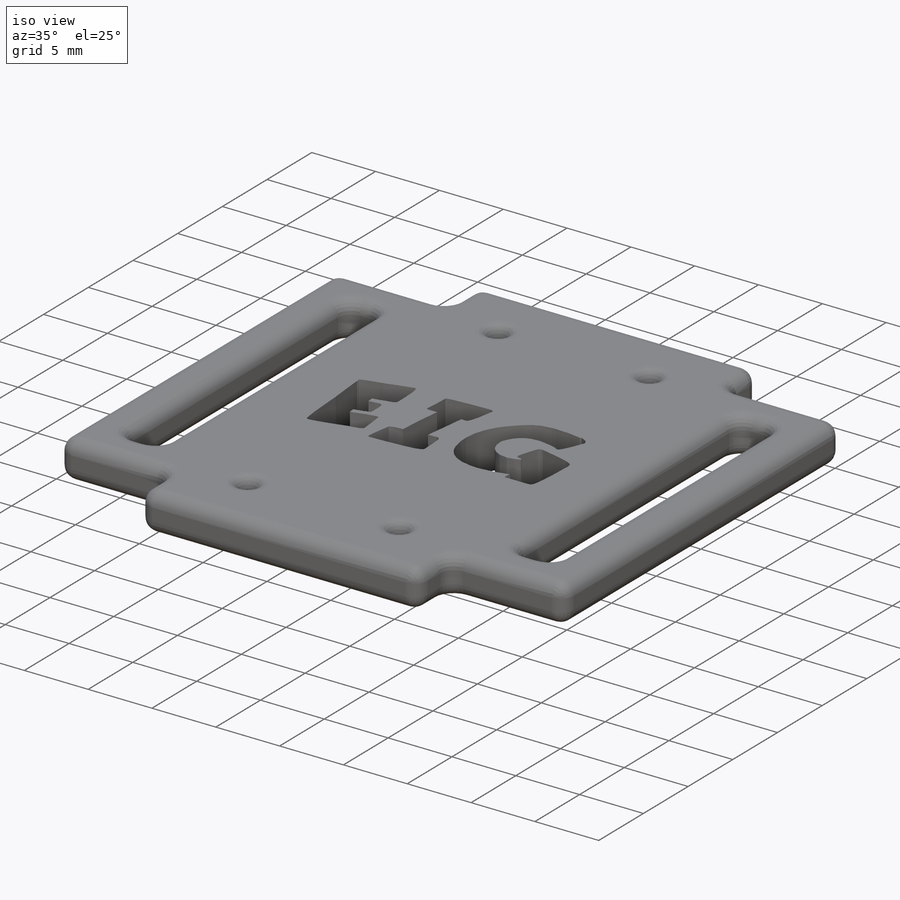
[diagram: iso view]
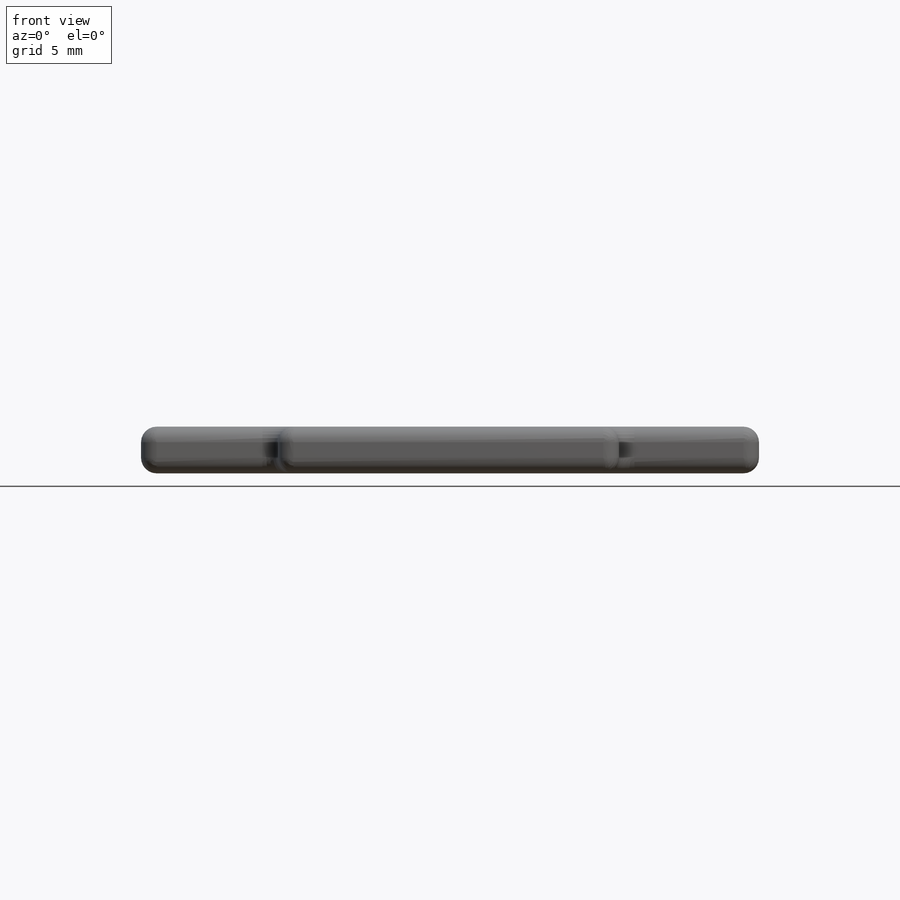
[diagram: front view]
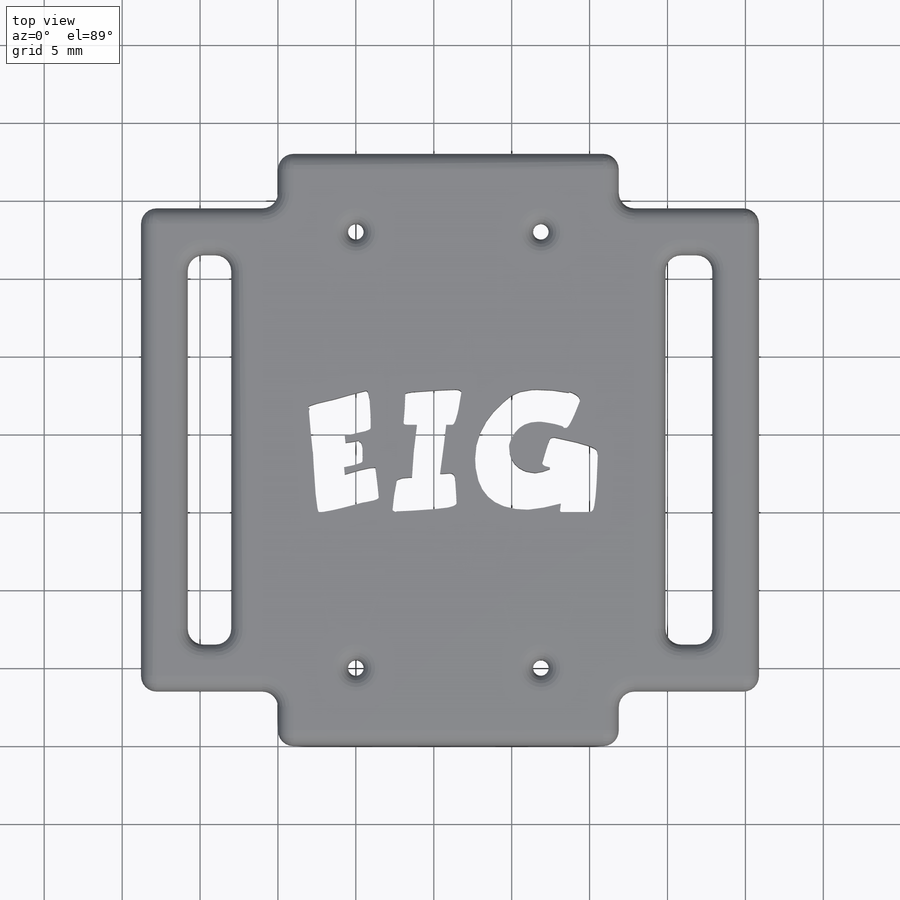
[diagram: top view]
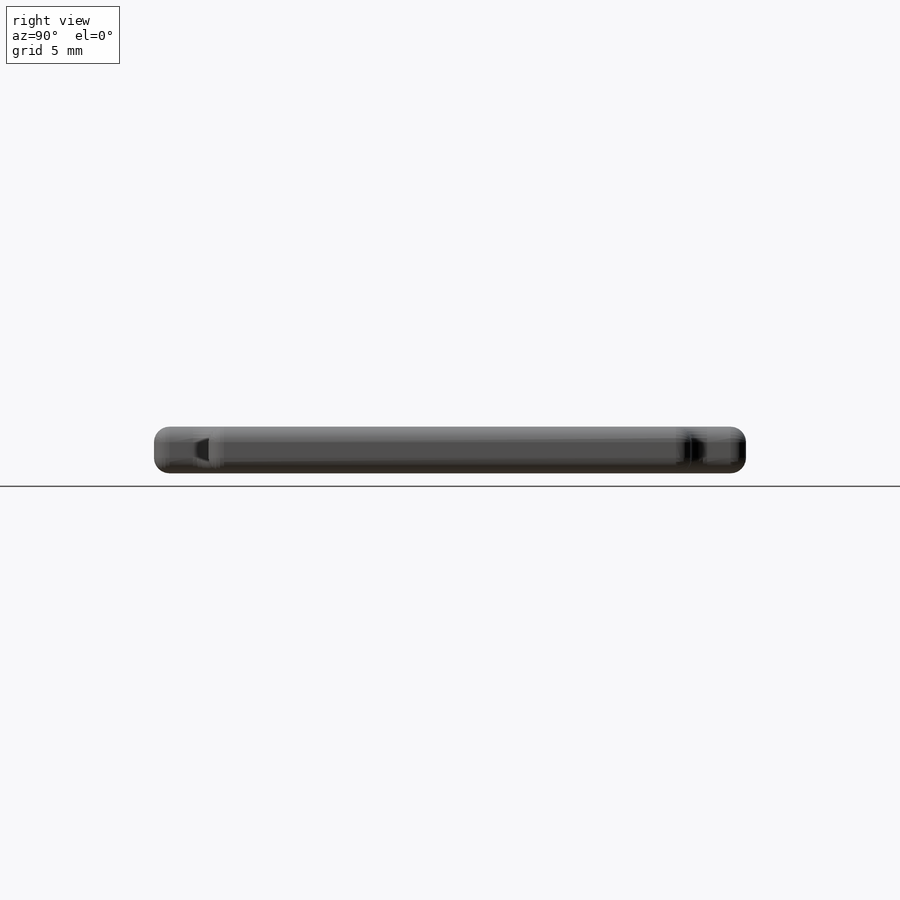
[diagram: right view]
SOLIDWORKS PART (.sldprt)
format: sldprt  version: not decoded by parser v0  size: 592,384 bytes
history: native  units: mm
features: sketch x4, extrude x2, cut_extrude x2, material x1, fillet x1 (+13 scaffold rows collapsed)
feature tree (23):
  scaffold x13  (default folders/planes/origin — collapsed)
  material  "Material <not specified>"
  sketch  "Sketch1"  dims[D1=~21.871781mm]
  extrude  "Boss-Extrude2"  Depth=3mm
  sketch  "Sketch8"  dims[c1.D1=25.0mm c1.D2=3.0mm c1.D3=~8.817057mm c1.D4=3.0mm c1.D5=~2.817057mm c2.D3=3.0mm c2.D5=3.0mm c2.D6=3.0mm c2.D7=3.0mm c2.D8=3.0mm c2.D9=3.0mm c2.D10=25.0mm c2.D11=3.0mm c2.D12=3.5mm c2.D13=3.5mm c2.D14=3.5mm]
  extrude  "Boss-Extrude5"  Depth=3mm
  sketch  "Sketch11"  dims[c1.D1=1.0mm c1.D3=1.0mm c1.D5=1.0mm c1.D6=1.0mm c1.D7=1.0mm c1.D8=1.0mm c2.D1=2.0mm c2.D2=2.0mm c2.D3=2.0mm c2.D4=2.0mm c2.D5=2.0mm c2.D6=2.0mm c2.D7=2.0mm c2.D8=2.0mm]
  cut_extrude  "Cut-Extrude5"  Depth=3mm
  fillet  "Fillet1"  Radius=1mm
  sketch  "Sketch12"
  cut_extrude  "Cut-Extrude6"  Depth=3mm
decode coverage: 8 of 9 modeling features carry decoded parameters
note: ~ marks probable driven/reference dimensions
note: suppression state not decoded; provenance and decode notes live in map.json
